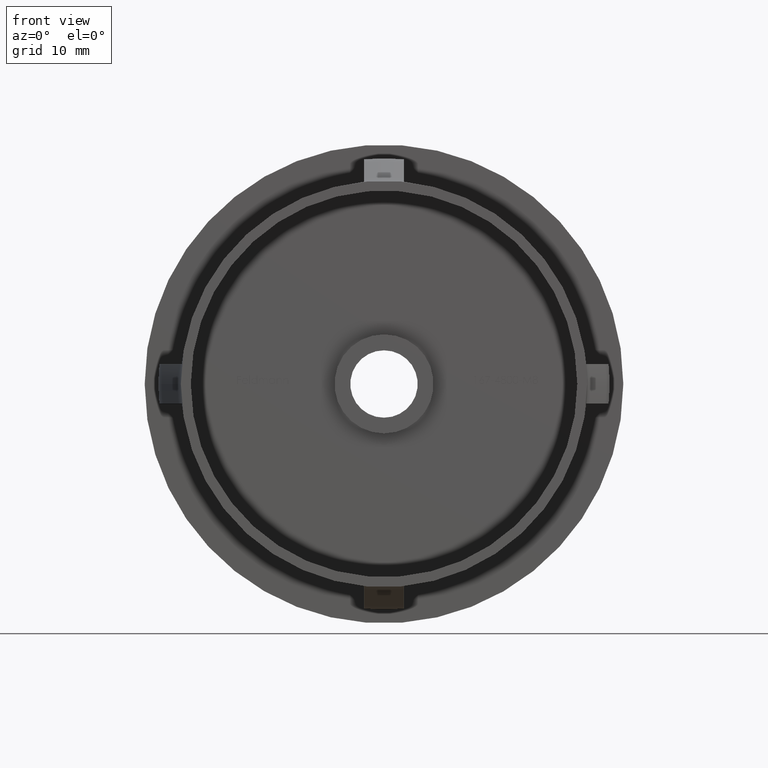
[diagram: clean part render]
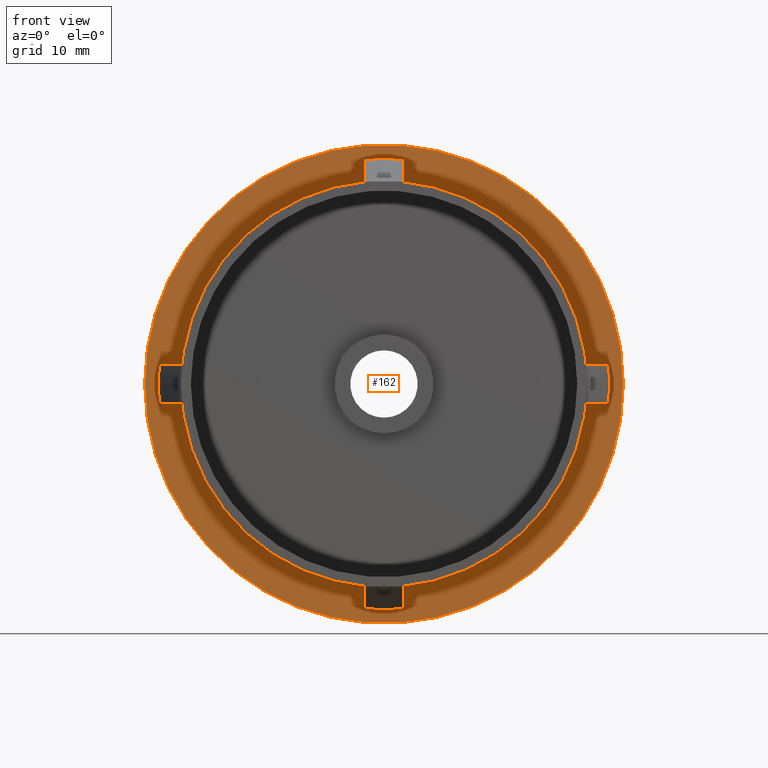
[diagram: same view with one face highlighted and labeled with its STEP entity id]
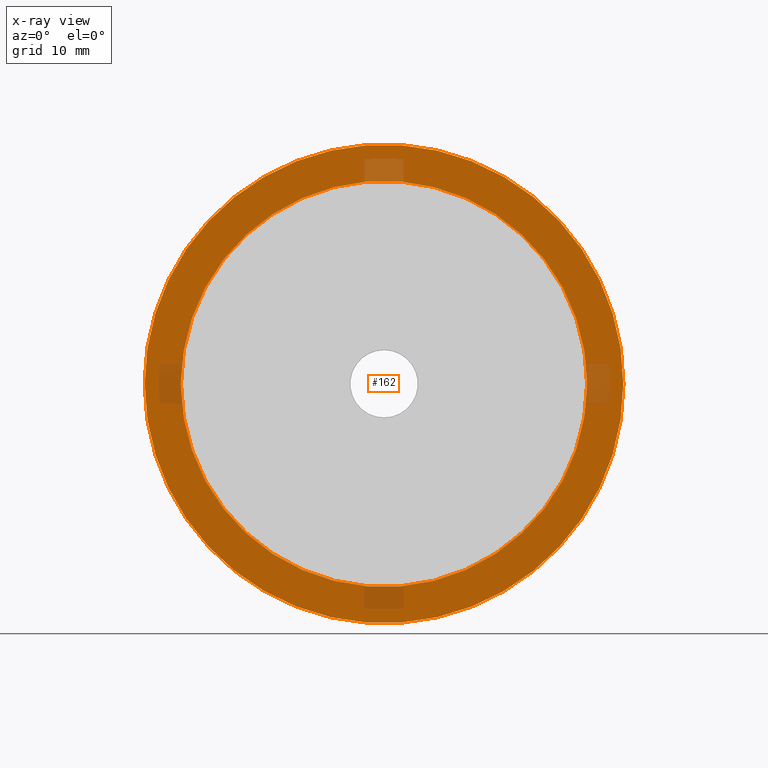
[diagram: x-ray of the same camera — body ghosted, the highlighted face saturated]
A machine part, front view. The second image highlights one B-rep face of the part: STEP entity #162.
The next image is the same camera in x-ray: the body ghosted, the highlighted face saturated — about 7% of this face is hidden behind the body in this view.
In plain terms, the highlighted planar face has unit normal (-0, 1, 0).
Its self-contained STEP definition (entity closure, byte-faithful):
#152 = ORIENTED_EDGE ( 'NONE', *, *, #14667, .T. ) ;
#162 = ADVANCED_FACE ( 'NONE', ( #3134, #17116 ), #13136, .F. ) ;
#330 = CIRCLE ( 'NONE', #5826, 24.14999999999999900 ) ;
#417 = EDGE_LOOP ( 'NONE', ( #12907, #16645 ) ) ;
#763 = DIRECTION ( 'NONE',  ( -1.000000000000000000, -1.692413147294446200E-016, 0.0000000000000000000 ) ) ;
#1272 = DIRECTION ( 'NONE',  ( -1.000000000000000000, -1.714505518806297100E-016, 0.0000000000000000000 ) ) ;
#3044 = AXIS2_PLACEMENT_3D ( 'NONE', #11832, #6576, #1272 ) ;
#3134 = FACE_OUTER_BOUND ( 'NONE', #417, .T. ) ;
#3361 = CARTESIAN_POINT ( 'NONE',  ( -20.49999999999999600, 25.69999999999999200, 0.0000000000000000000 ) ) ;
#3444 = DIRECTION ( 'NONE',  ( -1.000000000000000000, -1.692413147294446200E-016, 0.0000000000000000000 ) ) ;
#3632 = DIRECTION ( 'NONE',  ( -1.714505518806297100E-016, 1.000000000000000000, -0.0000000000000000000 ) ) ;
#5826 = AXIS2_PLACEMENT_3D ( 'NONE', #8713, #11276, #12561 ) ;
#6534 = DIRECTION ( 'NONE',  ( -1.714505518806297100E-016, 1.000000000000000000, -0.0000000000000000000 ) ) ;
#6576 = DIRECTION ( 'NONE',  ( -1.714505518806297100E-016, 1.000000000000000000, 0.0000000000000000000 ) ) ;
#7028 = CIRCLE ( 'NONE', #8421, 20.49999999999999600 ) ;
#7255 = DIRECTION ( 'NONE',  ( -1.714505518806297100E-016, 1.000000000000000000, -0.0000000000000000000 ) ) ;
#7273 = AXIS2_PLACEMENT_3D ( 'NONE', #9294, #6534, #7941 ) ;
#7637 = ORIENTED_EDGE ( 'NONE', *, *, #15082, .T. ) ;
#7941 = DIRECTION ( 'NONE',  ( -1.000000000000000000, -1.436623996668163300E-016, 0.0000000000000000000 ) ) ;
#8179 = VERTEX_POINT ( 'NONE', #13656 ) ;
#8421 = AXIS2_PLACEMENT_3D ( 'NONE', #16539, #7255, #763 ) ;
#8713 = CARTESIAN_POINT ( 'NONE',  ( 1.836970198721039300E-016, 25.69999999999999600, 0.0000000000000000000 ) ) ;
#9235 = CARTESIAN_POINT ( 'NONE',  ( -24.14999999999999900, 25.69999999999999200, 0.0000000000000000000 ) ) ;
#9294 = CARTESIAN_POINT ( 'NONE',  ( 1.836970198721039300E-016, 25.69999999999999600, 0.0000000000000000000 ) ) ;
#9445 = CIRCLE ( 'NONE', #7273, 24.14999999999999900 ) ;
#10798 = VERTEX_POINT ( 'NONE', #16472 ) ;
#11276 = DIRECTION ( 'NONE',  ( -1.714505518806297100E-016, 1.000000000000000000, -0.0000000000000000000 ) ) ;
#11619 = CIRCLE ( 'NONE', #16907, 20.49999999999999600 ) ;
#11832 = CARTESIAN_POINT ( 'NONE',  ( 24.14999999999999900, 25.69999999999999900, 0.0000000000000000000 ) ) ;
#12557 = VERTEX_POINT ( 'NONE', #3361 ) ;
#12561 = DIRECTION ( 'NONE',  ( -1.000000000000000000, -1.436623996668163300E-016, 0.0000000000000000000 ) ) ;
#12630 = EDGE_CURVE ( 'NONE', #14041, #8179, #9445, .T. ) ;
#12907 = ORIENTED_EDGE ( 'NONE', *, *, #12630, .F. ) ;
#13136 = PLANE ( 'NONE',  #3044 ) ;
#13656 = CARTESIAN_POINT ( 'NONE',  ( 24.14999999999999900, 25.69999999999999900, 2.957522019940857900E-015 ) ) ;
#14041 = VERTEX_POINT ( 'NONE', #9235 ) ;
#14662 = EDGE_CURVE ( 'NONE', #8179, #14041, #330, .T. ) ;
#14667 = EDGE_CURVE ( 'NONE', #10798, #12557, #7028, .T. ) ;
#15082 = EDGE_CURVE ( 'NONE', #12557, #10798, #11619, .T. ) ;
#16149 = EDGE_LOOP ( 'NONE', ( #7637, #152 ) ) ;
#16472 = CARTESIAN_POINT ( 'NONE',  ( 20.49999999999999600, 25.69999999999999900, 2.510525938252074500E-015 ) ) ;
#16539 = CARTESIAN_POINT ( 'NONE',  ( 1.836970198721037800E-016, 25.69999999999999600, 0.0000000000000000000 ) ) ;
#16645 = ORIENTED_EDGE ( 'NONE', *, *, #14662, .F. ) ;
#16799 = CARTESIAN_POINT ( 'NONE',  ( 1.836970198721037800E-016, 25.69999999999999600, 0.0000000000000000000 ) ) ;
#16907 = AXIS2_PLACEMENT_3D ( 'NONE', #16799, #3632, #3444 ) ;
#17116 = FACE_BOUND ( 'NONE', #16149, .T. ) ;